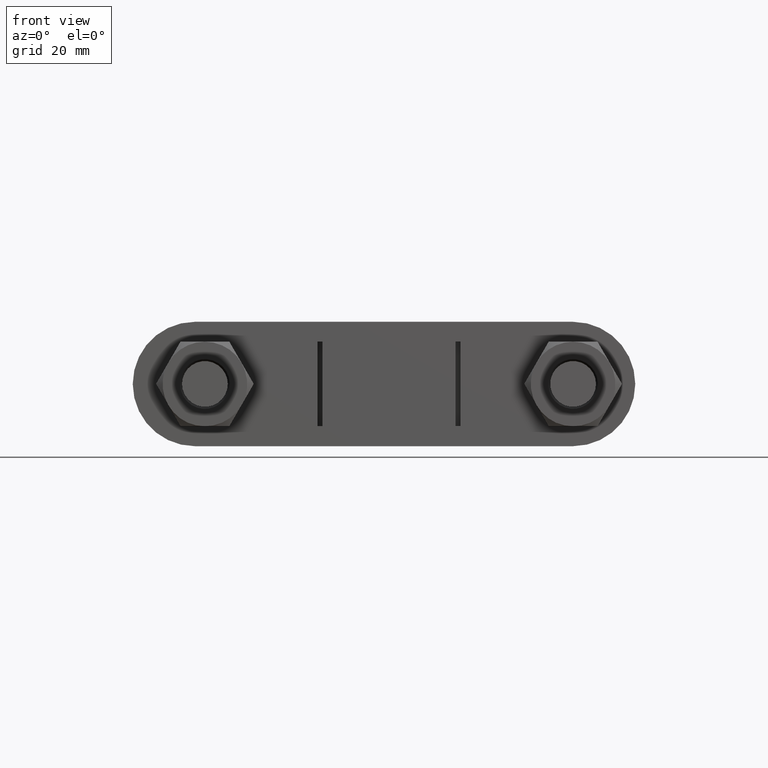
[diagram: clean part render]
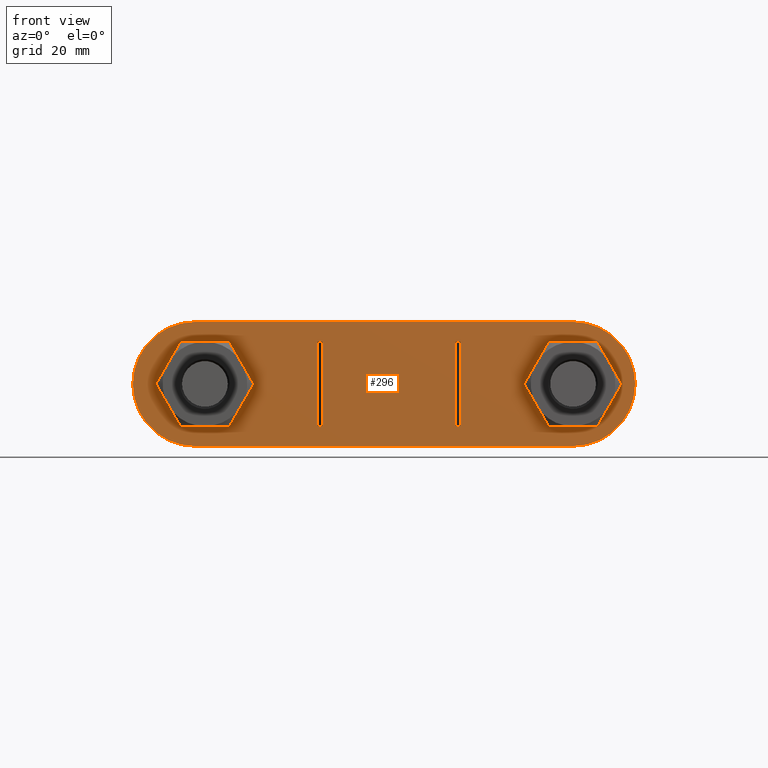
[diagram: same view with one face highlighted and labeled with its STEP entity id]
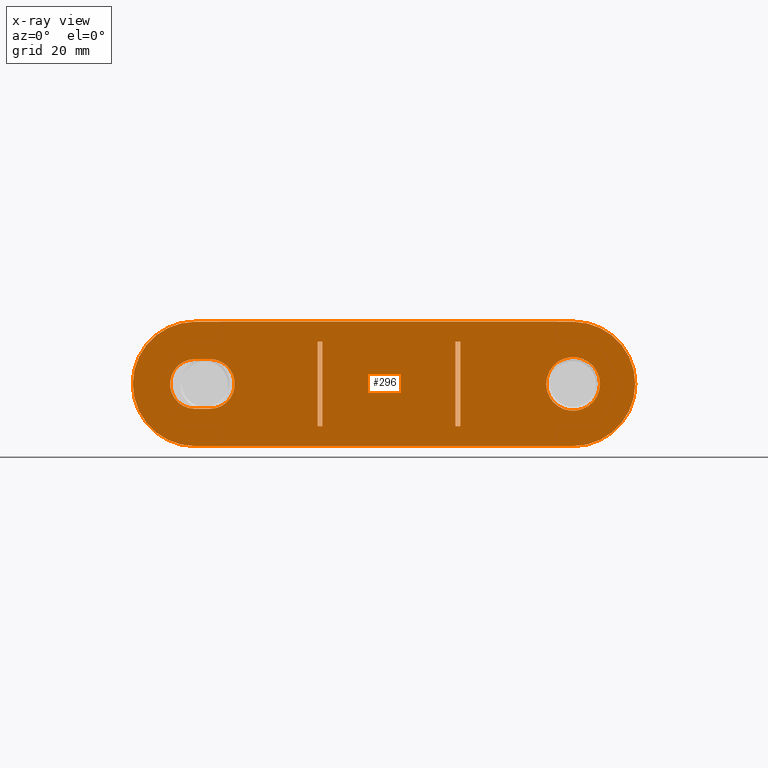
[diagram: x-ray of the same camera — body ghosted, the highlighted face saturated]
A machine part, front view. The second image highlights one B-rep face of the part: STEP entity #296.
The next image is the same camera in x-ray: the body ghosted, the highlighted face saturated — about 0% of this face is hidden behind the body in this view.
In plain terms, the highlighted planar face has unit normal (0, 1, 0).
Its self-contained STEP definition (entity closure, byte-faithful):
#296 = ADVANCED_FACE( '', ( #445, #446, #447, #448, #449 ), #450, .F. );
#445 = FACE_BOUND( '', #1373, .T. );
#446 = FACE_OUTER_BOUND( '', #1374, .T. );
#447 = FACE_BOUND( '', #1375, .T. );
#448 = FACE_BOUND( '', #1376, .T. );
#449 = FACE_BOUND( '', #1377, .T. );
#450 = PLANE( '', #1378 );
#1373 = EDGE_LOOP( '', ( #1748, #1749, #1750, #1751 ) );
#1374 = EDGE_LOOP( '', ( #1752, #1753, #1754, #1755, #1756, #1757 ) );
#1375 = EDGE_LOOP( '', ( #1758 ) );
#1376 = EDGE_LOOP( '', ( #1759, #1760, #1761, #1762 ) );
#1377 = EDGE_LOOP( '', ( #1763, #1764, #1765, #1766 ) );
#1378 = AXIS2_PLACEMENT_3D( '', #1767, #1768, #1769 );
#1748 = ORIENTED_EDGE( '', *, *, #2427, .F. );
#1749 = ORIENTED_EDGE( '', *, *, #2428, .T. );
#1750 = ORIENTED_EDGE( '', *, *, #2429, .T. );
#1751 = ORIENTED_EDGE( '', *, *, #2430, .F. );
#1752 = ORIENTED_EDGE( '', *, *, #2431, .F. );
#1753 = ORIENTED_EDGE( '', *, *, #2432, .F. );
#1754 = ORIENTED_EDGE( '', *, *, #2433, .F. );
#1755 = ORIENTED_EDGE( '', *, *, #2434, .F. );
#1756 = ORIENTED_EDGE( '', *, *, #2435, .F. );
#1757 = ORIENTED_EDGE( '', *, *, #2436, .F. );
#1758 = ORIENTED_EDGE( '', *, *, #2437, .T. );
#1759 = ORIENTED_EDGE( '', *, *, #2438, .F. );
#1760 = ORIENTED_EDGE( '', *, *, #2439, .F. );
#1761 = ORIENTED_EDGE( '', *, *, #2440, .F. );
#1762 = ORIENTED_EDGE( '', *, *, #2441, .F. );
#1763 = ORIENTED_EDGE( '', *, *, #2442, .T. );
#1764 = ORIENTED_EDGE( '', *, *, #2443, .T. );
#1765 = ORIENTED_EDGE( '', *, *, #2444, .F. );
#1766 = ORIENTED_EDGE( '', *, *, #2445, .F. );
#1767 = CARTESIAN_POINT( '', ( -39.0000000000000, 28.2000000000001, -5.57013053195795E-010 ) );
#1768 = DIRECTION( '', ( 1.22373322808620E-016, 1.00000000000000, 3.61950736598231E-017 ) );
#1769 = DIRECTION( '', ( -1.42825785920416E-011, -3.61950736580753E-017, 1.00000000000000 ) );
#2427 = EDGE_CURVE( '', #2693, #2694, #2695, .T. );
#2428 = EDGE_CURVE( '', #2693, #2696, #2697, .T. );
#2429 = EDGE_CURVE( '', #2696, #2698, #2699, .T. );
#2430 = EDGE_CURVE( '', #2694, #2698, #2700, .T. );
#2431 = EDGE_CURVE( '', #2701, #2702, #2703, .T. );
#2432 = EDGE_CURVE( '', #2704, #2701, #2705, .T. );
#2433 = EDGE_CURVE( '', #2706, #2704, #2707, .T. );
#2434 = EDGE_CURVE( '', #2708, #2706, #2709, .T. );
#2435 = EDGE_CURVE( '', #2710, #2708, #2711, .T. );
#2436 = EDGE_CURVE( '', #2702, #2710, #2712, .T. );
#2437 = EDGE_CURVE( '', #2713, #2713, #2714, .T. );
#2438 = EDGE_CURVE( '', #2715, #2716, #2717, .T. );
#2439 = EDGE_CURVE( '', #2718, #2715, #2719, .T. );
#2440 = EDGE_CURVE( '', #2720, #2718, #2721, .T. );
#2441 = EDGE_CURVE( '', #2716, #2720, #2722, .T. );
#2442 = EDGE_CURVE( '', #2723, #2724, #2725, .T. );
#2443 = EDGE_CURVE( '', #2724, #2726, #2727, .T. );
#2444 = EDGE_CURVE( '', #2728, #2726, #2729, .T. );
#2445 = EDGE_CURVE( '', #2723, #2728, #2730, .T. );
#2693 = VERTEX_POINT( '', #3316 );
#2694 = VERTEX_POINT( '', #3317 );
#2695 = LINE( '', #3318, #3319 );
#2696 = VERTEX_POINT( '', #3320 );
#2697 = LINE( '', #3321, #3322 );
#2698 = VERTEX_POINT( '', #3323 );
#2699 = LINE( '', #3324, #3325 );
#2700 = LINE( '', #3326, #3327 );
#2701 = VERTEX_POINT( '', #3328 );
#2702 = VERTEX_POINT( '', #3329 );
#2703 = CIRCLE( '', #3330, 12.5000000000000 );
#2704 = VERTEX_POINT( '', #3331 );
#2705 = CIRCLE( '', #3332, 12.5000000000000 );
#2706 = VERTEX_POINT( '', #3333 );
#2707 = LINE( '', #3334, #3335 );
#2708 = VERTEX_POINT( '', #3336 );
#2709 = CIRCLE( '', #3337, 12.5000000000000 );
#2710 = VERTEX_POINT( '', #3338 );
#2711 = CIRCLE( '', #3339, 12.5000000000000 );
#2712 = LINE( '', #3340, #3341 );
#2713 = VERTEX_POINT( '', #3342 );
#2714 = CIRCLE( '', #3343, 5.40000000000000 );
#2715 = VERTEX_POINT( '', #3344 );
#2716 = VERTEX_POINT( '', #3345 );
#2717 = CIRCLE( '', #3346, 5.00000000000000 );
#2718 = VERTEX_POINT( '', #3347 );
#2719 = LINE( '', #3348, #3349 );
#2720 = VERTEX_POINT( '', #3350 );
#2721 = CIRCLE( '', #3351, 5.00000000000000 );
#2722 = LINE( '', #3352, #3353 );
#2723 = VERTEX_POINT( '', #3354 );
#2724 = VERTEX_POINT( '', #3355 );
#2725 = LINE( '', #3356, #3357 );
#2726 = VERTEX_POINT( '', #3358 );
#2727 = LINE( '', #3359, #3360 );
#2728 = VERTEX_POINT( '', #3361 );
#2729 = LINE( '', #3362, #3363 );
#2730 = LINE( '', #3364, #3365 );
#3316 = CARTESIAN_POINT( '', ( -14.3499999998786, 28.2000000000001, -8.50000000020495 ) );
#3317 = CARTESIAN_POINT( '', ( -13.3499999998786, 28.2000000000001, -8.50000000019067 ) );
#3318 = CARTESIAN_POINT( '', ( -14.3499999998786, 28.2000000000001, -8.50000000020495 ) );
#3319 = VECTOR( '', #3946, 1000.00000000000 );
#3320 = CARTESIAN_POINT( '', ( -14.3500000001214, 28.2000000000001, 8.49999999979505 ) );
#3321 = CARTESIAN_POINT( '', ( -14.3499999998786, 28.2000000000001, -8.50000000020495 ) );
#3322 = VECTOR( '', #3947, 1000.00000000000 );
#3323 = CARTESIAN_POINT( '', ( -13.3500000001214, 28.2000000000001, 8.49999999980933 ) );
#3324 = CARTESIAN_POINT( '', ( -14.3500000001214, 28.2000000000001, 8.49999999979505 ) );
#3325 = VECTOR( '', #3948, 1000.00000000000 );
#3326 = CARTESIAN_POINT( '', ( -13.3499999998786, 28.2000000000001, -8.50000000019067 ) );
#3327 = VECTOR( '', #3949, 1000.00000000000 );
#3328 = CARTESIAN_POINT( '', ( -51.5000000000000, 28.2000000000001, -7.35538346702411E-010 ) );
#3329 = CARTESIAN_POINT( '', ( -39.0000000001785, 28.2000000000001, 12.4999999994430 ) );
#3330 = AXIS2_PLACEMENT_3D( '', #3950, #3951, #3952 );
#3331 = CARTESIAN_POINT( '', ( -38.9999999998215, 28.2000000000001, -12.5000000005570 ) );
#3332 = AXIS2_PLACEMENT_3D( '', #3953, #3954, #3955 );
#3333 = CARTESIAN_POINT( '', ( 37.0000000001785, 28.2000000000001, -12.4999999994715 ) );
#3334 = CARTESIAN_POINT( '', ( 37.0000000001785, 28.2000000000001, -12.4999999994715 ) );
#3335 = VECTOR( '', #3956, 1000.00000000000 );
#3336 = CARTESIAN_POINT( '', ( 49.5000000000000, 28.2000000000001, 7.06995152199886E-010 ) );
#3337 = AXIS2_PLACEMENT_3D( '', #3957, #3958, #3959 );
#3338 = CARTESIAN_POINT( '', ( 36.9999999998215, 28.2000000000001, 12.5000000005285 ) );
#3339 = AXIS2_PLACEMENT_3D( '', #3960, #3961, #3962 );
#3340 = CARTESIAN_POINT( '', ( -39.0000000001785, 28.2000000000001, 12.4999999994430 ) );
#3341 = VECTOR( '', #3963, 1000.00000000000 );
#3342 = CARTESIAN_POINT( '', ( 42.4000000000000, 28.2000000000001, 6.05592313643342E-010 ) );
#3343 = AXIS2_PLACEMENT_3D( '', #3964, #3965, #3966 );
#3344 = CARTESIAN_POINT( '', ( -39.0000000000714, 28.1999984999319, 4.99999999944299 ) );
#3345 = CARTESIAN_POINT( '', ( -38.9999999999286, 28.1999984999319, -5.00000000055701 ) );
#3346 = AXIS2_PLACEMENT_3D( '', #3967, #3968, #3969 );
#3347 = CARTESIAN_POINT( '', ( -36.0000000000714, 28.1999984999319, 4.99999999948584 ) );
#3348 = CARTESIAN_POINT( '', ( -36.0000000000714, 28.1999984999319, 4.99999999948584 ) );
#3349 = VECTOR( '', #3970, 1000.00000000000 );
#3350 = CARTESIAN_POINT( '', ( -35.9999999999286, 28.1999984999319, -5.00000000051416 ) );
#3351 = AXIS2_PLACEMENT_3D( '', #3971, #3972, #3973 );
#3352 = CARTESIAN_POINT( '', ( -38.9999999999286, 28.1999984999319, -5.00000000055701 ) );
#3353 = VECTOR( '', #3974, 1000.00000000000 );
#3354 = CARTESIAN_POINT( '', ( 14.3500000001214, 28.2000000000001, -8.49999999979504 ) );
#3355 = CARTESIAN_POINT( '', ( 13.3500000001214, 28.2000000000001, -8.49999999980932 ) );
#3356 = CARTESIAN_POINT( '', ( 14.3500000001214, 28.2000000000001, -8.49999999979504 ) );
#3357 = VECTOR( '', #3975, 1000.00000000000 );
#3358 = CARTESIAN_POINT( '', ( 13.3499999998786, 28.2000000000001, 8.50000000019068 ) );
#3359 = CARTESIAN_POINT( '', ( 13.3500000001214, 28.2000000000001, -8.49999999980932 ) );
#3360 = VECTOR( '', #3976, 1000.00000000000 );
#3361 = CARTESIAN_POINT( '', ( 14.3499999998786, 28.2000000000001, 8.50000000020496 ) );
#3362 = CARTESIAN_POINT( '', ( 14.3499999998786, 28.2000000000001, 8.50000000020496 ) );
#3363 = VECTOR( '', #3977, 1000.00000000000 );
#3364 = CARTESIAN_POINT( '', ( 14.3500000001214, 28.2000000000001, -8.49999999979504 ) );
#3365 = VECTOR( '', #3978, 1000.00000000000 );
#3946 = DIRECTION( '', ( 1.00000000000000, -1.22373322809137E-016, 1.42825785920416E-011 ) );
#3947 = DIRECTION( '', ( -1.42824588432272E-011, 2.20607087419547E-016, 1.00000000000000 ) );
#3948 = DIRECTION( '', ( 1.00000000000000, -1.22373322809137E-016, 1.42825785920416E-011 ) );
#3949 = DIRECTION( '', ( -1.42824588432272E-011, 2.20607087419547E-016, 1.00000000000000 ) );
#3950 = CARTESIAN_POINT( '', ( -39.0000000000000, 28.2000000000001, -5.57013053195795E-010 ) );
#3951 = DIRECTION( '', ( 1.22373322808620E-016, 1.00000000000000, 3.61950736598232E-017 ) );
#3952 = DIRECTION( '', ( -1.00000000000000, 1.22373322809137E-016, -1.42825785920416E-011 ) );
#3953 = CARTESIAN_POINT( '', ( -39.0000000000000, 28.2000000000001, -5.57006114301891E-010 ) );
#3954 = DIRECTION( '', ( 1.22373322808620E-016, 1.00000000000000, 3.61950736598232E-017 ) );
#3955 = DIRECTION( '', ( 1.42825785920416E-011, 3.61950736580753E-017, -1.00000000000000 ) );
#3956 = DIRECTION( '', ( -1.00000000000000, 1.22373322809137E-016, -1.42825785920416E-011 ) );
#3957 = CARTESIAN_POINT( '', ( 37.0000000000000, 28.2000000000001, 5.28469858693270E-010 ) );
#3958 = DIRECTION( '', ( 1.22373322808620E-016, 1.00000000000000, 3.61950736598232E-017 ) );
#3959 = DIRECTION( '', ( 1.00000000000000, -1.22373322809137E-016, 1.42825785920416E-011 ) );
#3960 = CARTESIAN_POINT( '', ( 37.0000000000000, 28.2000000000001, 5.28462919799366E-010 ) );
#3961 = DIRECTION( '', ( 1.22373322808620E-016, 1.00000000000000, 3.61950736598232E-017 ) );
#3962 = DIRECTION( '', ( -1.42825785920416E-011, -3.61950736580753E-017, 1.00000000000000 ) );
#3963 = DIRECTION( '', ( 1.00000000000000, -1.22373322809137E-016, 1.42825785920416E-011 ) );
#3964 = CARTESIAN_POINT( '', ( 37.0000000000000, 28.2000000000001, 5.28466389246318E-010 ) );
#3965 = DIRECTION( '', ( 1.22373322808620E-016, 1.00000000000000, 3.61950736598232E-017 ) );
#3966 = DIRECTION( '', ( 1.00000000000000, -1.22373322809137E-016, 1.42825785920416E-011 ) );
#3967 = CARTESIAN_POINT( '', ( -39.0000000000000, 28.1999984999319, -5.57011318472373E-010 ) );
#3968 = DIRECTION( '', ( -1.22373322808620E-016, -1.00000000000000, -3.61950736598232E-017 ) );
#3969 = DIRECTION( '', ( -1.42825785920416E-011, -3.61950736580753E-017, 1.00000000000000 ) );
#3970 = DIRECTION( '', ( -1.00000000000000, 1.22373322809137E-016, -1.42825785920416E-011 ) );
#3971 = CARTESIAN_POINT( '', ( -36.0000000000000, 28.1999984999319, -5.14163582696249E-010 ) );
#3972 = DIRECTION( '', ( -1.22373322808620E-016, -1.00000000000000, -3.61950736598232E-017 ) );
#3973 = DIRECTION( '', ( 1.42825785920416E-011, 3.61950736580753E-017, -1.00000000000000 ) );
#3974 = DIRECTION( '', ( 1.00000000000000, -1.22373322809137E-016, 1.42825785920416E-011 ) );
#3975 = DIRECTION( '', ( -1.00000000000000, 2.44833958191374E-016, -1.42825785920416E-011 ) );
#3976 = DIRECTION( '', ( -1.42826983408559E-011, 2.20607087419547E-016, 1.00000000000000 ) );
#3977 = DIRECTION( '', ( -1.00000000000000, 2.44833958191374E-016, -1.42825785920416E-011 ) );
#3978 = DIRECTION( '', ( -1.42826983408559E-011, 2.20607087419547E-016, 1.00000000000000 ) );